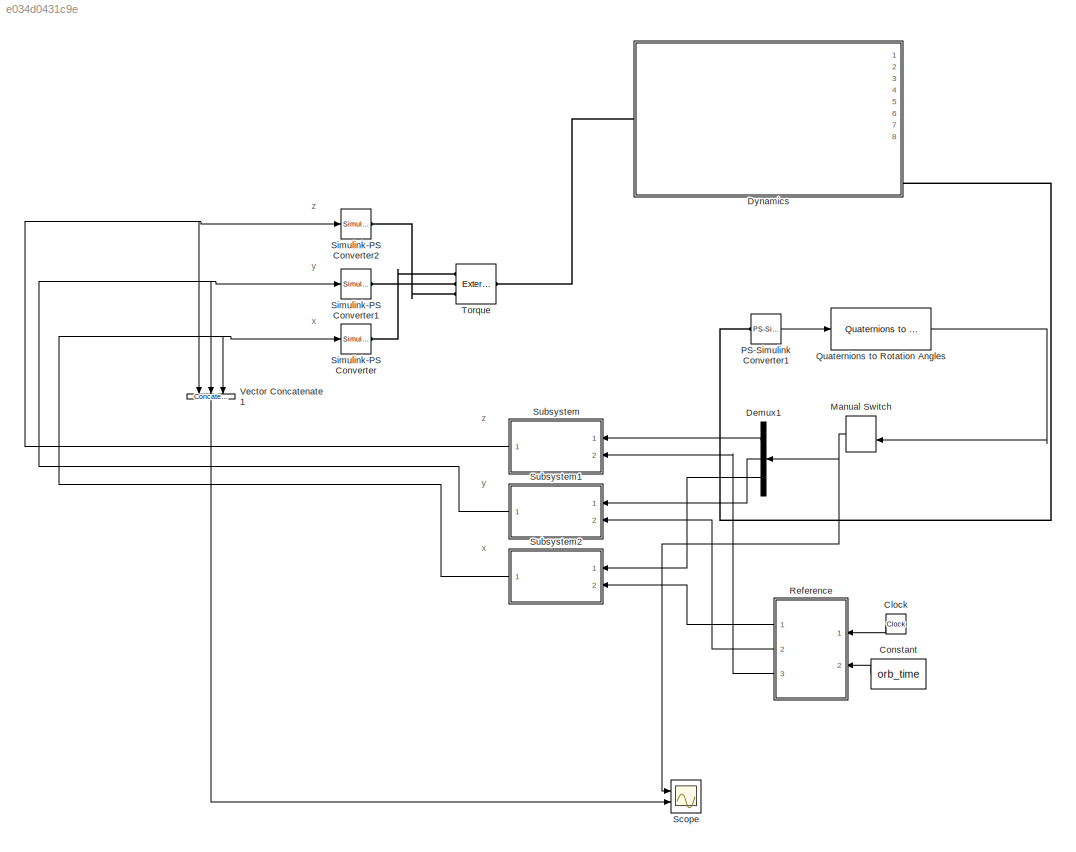
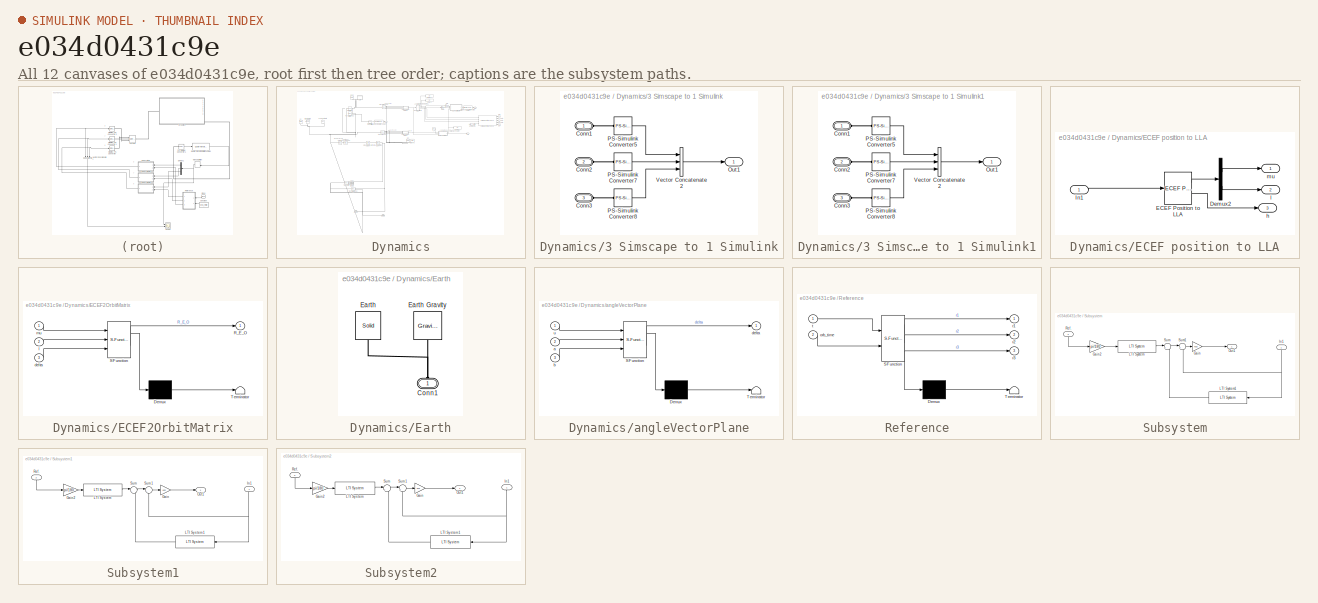
[diagram: thumbnail index - all 12 canvases of the model, root first then tree order]
MODEL slx_e034d0431c9e
KIND model
CONFIG AbsTol = auto
CONFIG EnableMultiTasking = on
CONFIG FixedStep = 24*60*60
CONFIG MaxStep = orb_time*5e-3
CONFIG MinStep = 5e-2
CONFIG RelTol = 1e-6
CONFIG SampleTimeConstraint = Unconstrained
CONFIG Solver = VariableStepAuto
CONFIG SolverName = VariableStepAuto
CONFIG StartTime = 0.0
CONFIG StopTime = 5*orb_time
WORKSPACE source: MATLAB code (in-file)
WORKSPACE code: Orbits_Setup
BLOCK [Clock] Clock
BLOCK [Constant] Constant
  Value = orb_time
BLOCK [Demux] Demux1
  DisplayOption = bar
  Outputs = 3
  Ports = [1, 3]
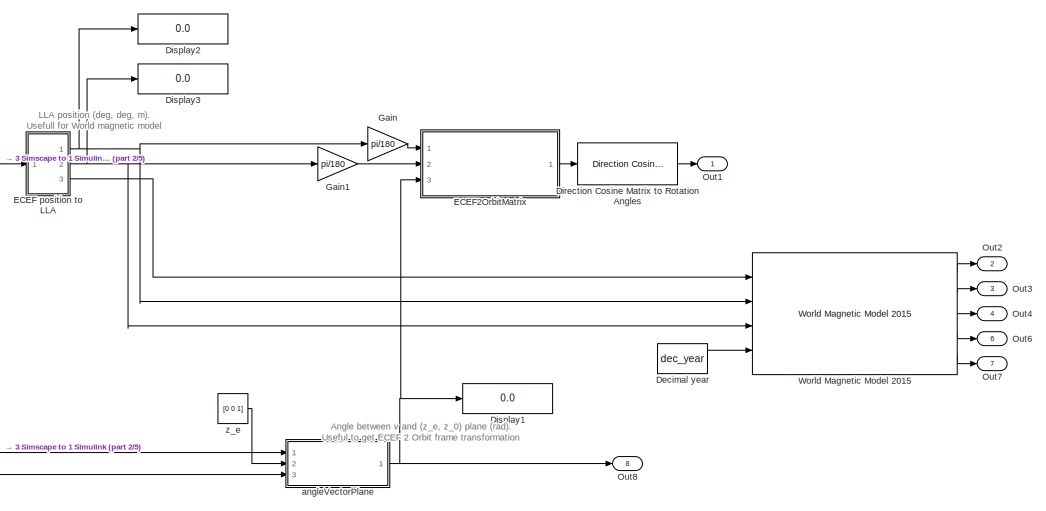
[diagram: Dynamics - part 1/5, top right region]
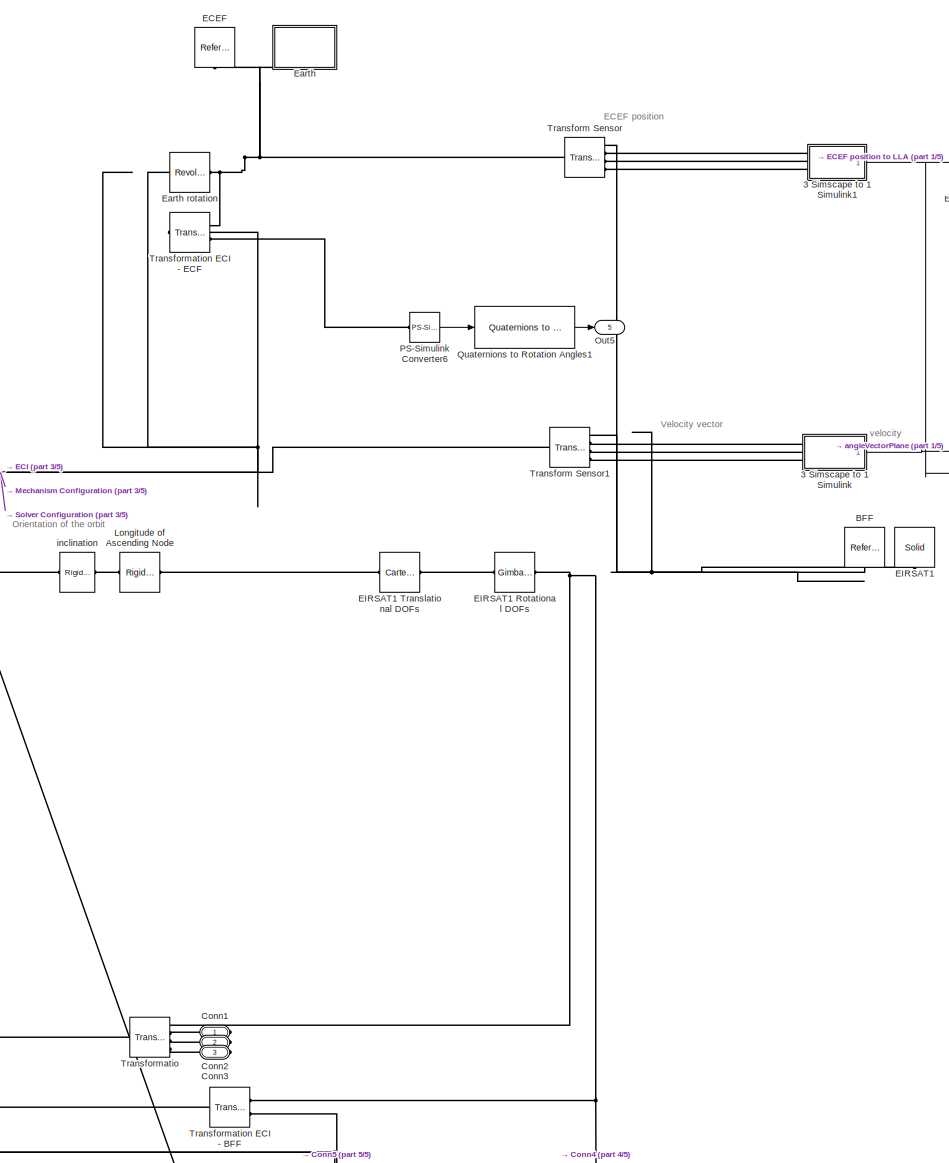
[diagram: Dynamics - part 2/5, central region]
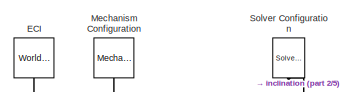
[diagram: Dynamics - part 3/5, top left region]
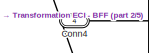
[diagram: Dynamics - part 4/5, bottom left region]
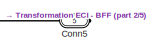
[diagram: Dynamics - part 5/5, bottom center region]
BLOCK [SubSystem] Dynamics
  Ports = [0, 8, 0, 0, 0, 1, 4]
  RequestExecContextInheritance = off
  Variant = off
BLOCK [Reference] Dynamics/ Earth rotation  REF=sm_lib/Joints/Revolute Joint
  Ports = [0, 0, 0, 0, 0, 1, 1]
  SourceBlock = sm_lib/Joints/Revolute Joint
  SourceProductBaseCode = MS
  SourceProductName = Simscape Multibody
  SourceType = Revolute Joint
BLOCK [SubSystem] Dynamics/3 Simscape to 1 Simulink
  Ports = [0, 1, 0, 0, 0, 3]
  RequestExecContextInheritance = off
  Variant = off
BLOCK [PMIOPort] Dynamics/3 Simscape to 1 Simulink/Conn1
  Port = 1
  Side = Left
BLOCK [PMIOPort] Dynamics/3 Simscape to 1 Simulink/Conn2
  Port = 2
  Side = Left
BLOCK [PMIOPort] Dynamics/3 Simscape to 1 Simulink/Conn3
  Port = 3
  Side = Left
BLOCK [Outport] Dynamics/3 Simscape to 1 Simulink/Out1
  IconDisplay = Port number
BLOCK [Reference] Dynamics/3 Simscape to 1 Simulink/PS-Simulink Converter5  REF=nesl_utility/PS-Simulink
Converter
  Ports = [0, 1, 0, 0, 0, 1]
  SourceBlock = nesl_utility/PS-Simulink\nConverter
  SourceProductBaseCode = SS
  SourceProductName = Simscape
  SourceType = PS-Simulink\nConverter
BLOCK [Reference] Dynamics/3 Simscape to 1 Simulink/PS-Simulink Converter7  REF=nesl_utility/PS-Simulink
Converter
  Ports = [0, 1, 0, 0, 0, 1]
  SourceBlock = nesl_utility/PS-Simulink\nConverter
  SourceProductBaseCode = SS
  SourceProductName = Simscape
  SourceType = PS-Simulink\nConverter
BLOCK [Reference] Dynamics/3 Simscape to 1 Simulink/PS-Simulink Converter8  REF=nesl_utility/PS-Simulink
Converter
  Ports = [0, 1, 0, 0, 0, 1]
  SourceBlock = nesl_utility/PS-Simulink\nConverter
  SourceProductBaseCode = SS
  SourceProductName = Simscape
  SourceType = PS-Simulink\nConverter
BLOCK [Concatenate] Dynamics/3 Simscape to 1 Simulink/Vector Concatenate2
  NumInputs = 3
  Ports = [3, 1]
BLOCK [SubSystem] Dynamics/3 Simscape to 1 Simulink1
  Ports = [0, 1, 0, 0, 0, 3]
  RequestExecContextInheritance = off
  Variant = off
BLOCK [PMIOPort] Dynamics/3 Simscape to 1 Simulink1/Conn1
  Port = 1
  Side = Left
BLOCK [PMIOPort] Dynamics/3 Simscape to 1 Simulink1/Conn2
  Port = 2
  Side = Left
BLOCK [PMIOPort] Dynamics/3 Simscape to 1 Simulink1/Conn3
  Port = 3
  Side = Left
BLOCK [Outport] Dynamics/3 Simscape to 1 Simulink1/Out1
  IconDisplay = Port number
BLOCK [Reference] Dynamics/3 Simscape to 1 Simulink1/PS-Simulink Converter5  REF=nesl_utility/PS-Simulink
Converter
  Ports = [0, 1, 0, 0, 0, 1]
  SourceBlock = nesl_utility/PS-Simulink\nConverter
  SourceProductBaseCode = SS
  SourceProductName = Simscape
  SourceType = PS-Simulink\nConverter
BLOCK [Reference] Dynamics/3 Simscape to 1 Simulink1/PS-Simulink Converter7  REF=nesl_utility/PS-Simulink
Converter
  Ports = [0, 1, 0, 0, 0, 1]
  SourceBlock = nesl_utility/PS-Simulink\nConverter
  SourceProductBaseCode = SS
  SourceProductName = Simscape
  SourceType = PS-Simulink\nConverter
BLOCK [Reference] Dynamics/3 Simscape to 1 Simulink1/PS-Simulink Converter8  REF=nesl_utility/PS-Simulink
Converter
  Ports = [0, 1, 0, 0, 0, 1]
  SourceBlock = nesl_utility/PS-Simulink\nConverter
  SourceProductBaseCode = SS
  SourceProductName = Simscape
  SourceType = PS-Simulink\nConverter
BLOCK [Concatenate] Dynamics/3 Simscape to 1 Simulink1/Vector Concatenate2
  NumInputs = 3
  Ports = [3, 1]
BLOCK [Reference] Dynamics/BFF  REF=sm_lib/Frames and
Transforms/Reference
Frame
  Ports = [0, 0, 0, 0, 0, 0, 1]
  SourceBlock = sm_lib/Frames and\nTransforms/Reference\nFrame
  SourceProductBaseCode = MS
  SourceProductName = Simscape Multibody
  SourceType = Reference\nFrame
BLOCK [PMIOPort] Dynamics/Conn1
  Port = 1
  Side = Right
BLOCK [PMIOPort] Dynamics/Conn2
  Port = 2
  Side = Right
BLOCK [PMIOPort] Dynamics/Conn3
  Port = 3
  Side = Right
BLOCK [PMIOPort] Dynamics/Conn4
  Port = 4
  Side = Left
BLOCK [PMIOPort] Dynamics/Conn5
  Port = 5
  Side = Right
BLOCK [Constant] Dynamics/Decimal year
  Commented = on
  Value = dec_year
BLOCK [Reference] Dynamics/Direction Cosine Matrix to Rotation Angles  REF=sharedtransform/Direction Cosine Matrix
to Rotation Angles
  AttributesFormatString = Rotation Order: %<rotationOrder>
  Commented = on
  Ports = [1, 1]
  SourceBlock = sharedtransform/Direction Cosine Matrix\nto Rotation Angles
  SourceType = DCM2Ang
BLOCK [Display] Dynamics/Display1
  Commented = on
  Decimation = 1
  Ports = [1]
BLOCK [Display] Dynamics/Display2
  Commented = on
  Decimation = 1
  Ports = [1]
BLOCK [Display] Dynamics/Display3
  Commented = on
  Decimation = 1
  Ports = [1]
BLOCK [Reference] Dynamics/ECEF   REF=sm_lib/Frames and
Transforms/Reference
Frame
  Ports = [0, 0, 0, 0, 0, 0, 1]
  SourceBlock = sm_lib/Frames and\nTransforms/Reference\nFrame
  SourceProductBaseCode = MS
  SourceProductName = Simscape Multibody
  SourceType = Reference\nFrame
BLOCK [SubSystem] Dynamics/ECEF position to LLA
  Commented = on
  Ports = [1, 3]
  RequestExecContextInheritance = off
  Variant = off
BLOCK [Demux] Dynamics/ECEF position to LLA/Demux2
  DisplayOption = bar
  Outputs = 2
  Ports = [1, 2]
BLOCK [Reference] Dynamics/ECEF position to LLA/ECEF Position to LLA  REF=aerolibtransform2/ECEF Position to LLA
  Ports = [1, 2]
  SourceBlock = aerolibtransform2/ECEF Position to LLA
  SourceProductBaseCode = AE
  SourceProductName = Aerospace Blockset
  SourceType = ECEF to LLA
BLOCK [Inport] Dynamics/ECEF position to LLA/In1
  IconDisplay = Port number
BLOCK [Outport] Dynamics/ECEF position to LLA/h
  IconDisplay = Port number
  Port = 3
BLOCK [Outport] Dynamics/ECEF position to LLA/l
  IconDisplay = Port number
  Port = 2
BLOCK [Outport] Dynamics/ECEF position to LLA/mu
  IconDisplay = Port number
BLOCK [SubSystem] Dynamics/ECEF2OrbitMatrix
  Commented = on
  ErrorFcn = Stateflow.Translate.translate
  PermitHierarchicalResolution = ExplicitOnly
  Ports = [3, 1]
  RequestExecContextInheritance = off
  SFBlockType = MATLAB Function
  TreatAsAtomicUnit = on
  Variant = off
BLOCK [Demux] Dynamics/ECEF2OrbitMatrix/ Demux 
  Outputs = 1
  Ports = [1, 1]
BLOCK [S-Function] Dynamics/ECEF2OrbitMatrix/ SFunction 
  EnableBusSupport = on
  FunctionName = sf_sfun
  PortCounts = [3 2]
  Ports = [3, 2]
  SFcnIsStateOwnerBlock = off
  SFunctionDeploymentMode = off
  Tag = Stateflow S-Function Orbits 4
BLOCK [Terminator] Dynamics/ECEF2OrbitMatrix/ Terminator 
BLOCK [Outport] Dynamics/ECEF2OrbitMatrix/R_E_O
  IconDisplay = Port number
BLOCK [Inport] Dynamics/ECEF2OrbitMatrix/delta
  IconDisplay = Port number
  Port = 3
BLOCK [Inport] Dynamics/ECEF2OrbitMatrix/l
  IconDisplay = Port number
  Port = 2
BLOCK [Inport] Dynamics/ECEF2OrbitMatrix/mu
  IconDisplay = Port number
BLOCK [Reference] Dynamics/ECI  REF=sm_lib/Frames and
Transforms/World Frame
  Ports = [0, 0, 0, 0, 0, 0, 1]
  SourceBlock = sm_lib/Frames and\nTransforms/World Frame
  SourceProductBaseCode = MS
  SourceProductName = Simscape Multibody
  SourceType = World Frame
BLOCK [Reference] Dynamics/EIRSAT1  REF=sm_lib/Body Elements/Solid
  Ports = [0, 0, 0, 0, 0, 0, 1]
  SourceBlock = sm_lib/Body Elements/Solid
  SourceProductBaseCode = MS
  SourceProductName = Simscape Multibody
  SourceType = Solid
BLOCK [Reference] Dynamics/EIRSAT1 Rotational DOFs  REF=sm_lib/Joints/Gimbal Joint
  Ports = [0, 0, 0, 0, 0, 1, 1]
  SourceBlock = sm_lib/Joints/Gimbal Joint
  SourceProductBaseCode = MS
  SourceProductName = Simscape Multibody
  SourceType = Gimbal Joint
BLOCK [Reference] Dynamics/EIRSAT1 Translational DOFs  REF=sm_lib/Joints/Cartesian
Joint
  Ports = [0, 0, 0, 0, 0, 1, 1]
  SourceBlock = sm_lib/Joints/Cartesian\nJoint
  SourceProductBaseCode = MS
  SourceProductName = Simscape Multibody
  SourceType = Cartesian\nJoint
BLOCK [SubSystem] Dynamics/Earth
  Ports = [0, 0, 0, 0, 0, 1]
  RequestExecContextInheritance = off
  Variant = off
BLOCK [PMIOPort] Dynamics/Earth/Conn1
  Port = 1
  Side = Left
BLOCK [Reference] Dynamics/Earth/Earth  REF=sm_lib/Body Elements/Solid
  Ports = [0, 0, 0, 0, 0, 0, 1]
  SourceBlock = sm_lib/Body Elements/Solid
  SourceProductBaseCode = MS
  SourceProductName = Simscape Multibody
  SourceType = Solid
BLOCK [Reference] Dynamics/Earth/Earth Gravity  REF=sm_lib/Forces and
Torques/Gravitational
Field
  Ports = [0, 0, 0, 0, 0, 1]
  SourceBlock = sm_lib/Forces and\nTorques/Gravitational\nField
  SourceProductBaseCode = MS
  SourceProductName = Simscape Multibody
  SourceType = Gravitational\nField
BLOCK [Gain] Dynamics/Gain
  Commented = on
  Gain = pi/180
  OutDataTypeStr = Inherit: Inherit via internal rule
  ParamDataTypeStr = Inherit: Inherit via internal rule
  SaturateOnIntegerOverflow = off
BLOCK [Gain] Dynamics/Gain1
  Commented = on
  Gain = pi/180
  OutDataTypeStr = Inherit: Inherit via internal rule
  ParamDataTypeStr = Inherit: Inherit via internal rule
  SaturateOnIntegerOverflow = off
BLOCK [Reference] Dynamics/Longitude of Ascending Node  REF=sm_lib/Frames and
Transforms/Rigid
Transform
  Ports = [0, 0, 0, 0, 0, 1, 1]
  SourceBlock = sm_lib/Frames and\nTransforms/Rigid\nTransform
  SourceProductBaseCode = MS
  SourceProductName = Simscape Multibody
  SourceType = Rigid\nTransform
BLOCK [Reference] Dynamics/Mechanism Configuration  REF=sm_lib/Utilities/Mechanism
Configuration
  Ports = [0, 0, 0, 0, 0, 0, 1]
  SourceBlock = sm_lib/Utilities/Mechanism\nConfiguration
  SourceProductBaseCode = MS
  SourceProductName = Simscape Multibody
  SourceType = Mechanism\nConfiguration
BLOCK [Outport] Dynamics/Out1
  IconDisplay = Port number
BLOCK [Outport] Dynamics/Out2
  IconDisplay = Port number
  Port = 2
BLOCK [Outport] Dynamics/Out3
  IconDisplay = Port number
  Port = 3
BLOCK [Outport] Dynamics/Out4
  IconDisplay = Port number
  Port = 4
BLOCK [Outport] Dynamics/Out5
  IconDisplay = Port number
  Port = 5
BLOCK [Outport] Dynamics/Out6
  IconDisplay = Port number
  Port = 6
BLOCK [Outport] Dynamics/Out7
  IconDisplay = Port number
  Port = 7
BLOCK [Outport] Dynamics/Out8
  IconDisplay = Port number
  Port = 8
BLOCK [Reference] Dynamics/PS-Simulink Converter6  REF=nesl_utility/PS-Simulink
Converter
  Ports = [0, 1, 0, 0, 0, 1]
  SourceBlock = nesl_utility/PS-Simulink\nConverter
  SourceProductBaseCode = SS
  SourceProductName = Simscape
  SourceType = PS-Simulink\nConverter
BLOCK [Reference] Dynamics/Quaternions to Rotation Angles1  REF=sharedtransform/Quaternions to Rotation Angles
  AttributesFormatString = Rotation Order: %<rotationOrder>
  Ports = [1, 1]
  SourceBlock = sharedtransform/Quaternions to Rotation Angles
  SourceType = Quat2Ang
BLOCK [Reference] Dynamics/Solver Configuration  REF=nesl_utility/Solver
Configuration
  Ports = [0, 0, 0, 0, 0, 0, 1]
  SourceBlock = nesl_utility/Solver\nConfiguration
  SourceProductBaseCode = SS
  SourceProductName = Simscape
  SourceType = Solver\nConfiguration
BLOCK [Reference] Dynamics/Transform Sensor  REF=sm_lib/Frames and
Transforms/Transform
Sensor
  Ports = [0, 0, 0, 0, 0, 1, 4]
  SourceBlock = sm_lib/Frames and\nTransforms/Transform\nSensor
  SourceProductBaseCode = MS
  SourceProductName = Simscape Multibody
  SourceType = Transform\nSensor
BLOCK [Reference] Dynamics/Transform Sensor1  REF=sm_lib/Frames and
Transforms/Transform
Sensor
  Ports = [0, 0, 0, 0, 0, 1, 4]
  SourceBlock = sm_lib/Frames and\nTransforms/Transform\nSensor
  SourceProductBaseCode = MS
  SourceProductName = Simscape Multibody
  SourceType = Transform\nSensor
BLOCK [Reference] Dynamics/Transformatio  REF=sm_lib/Frames and
Transforms/Transform
Sensor
  Ports = [0, 0, 0, 0, 0, 1, 4]
  SourceBlock = sm_lib/Frames and\nTransforms/Transform\nSensor
  SourceProductBaseCode = MS
  SourceProductName = Simscape Multibody
  SourceType = Transform\nSensor
BLOCK [Reference] Dynamics/Transformation ECI - BFF  REF=sm_lib/Frames and
Transforms/Transform
Sensor
  Ports = [0, 0, 0, 0, 0, 1, 2]
  SourceBlock = sm_lib/Frames and\nTransforms/Transform\nSensor
  SourceProductBaseCode = MS
  SourceProductName = Simscape Multibody
  SourceType = Transform\nSensor
BLOCK [Reference] Dynamics/Transformation ECI - ECF  REF=sm_lib/Frames and
Transforms/Transform
Sensor
  Ports = [0, 0, 0, 0, 0, 1, 2]
  SourceBlock = sm_lib/Frames and\nTransforms/Transform\nSensor
  SourceProductBaseCode = MS
  SourceProductName = Simscape Multibody
  SourceType = Transform\nSensor
BLOCK [Reference] Dynamics/World Magnetic Model 2015  REF=aerolibgravity2/World Magnetic Model 2015
  Commented = on
  Ports = [4, 5]
  SourceBlock = aerolibgravity2/World Magnetic Model 2015
  SourceProductBaseCode = AE
  SourceProductName = Aerospace Blockset
  SourceType = WorldMagneticModel2015
BLOCK [SubSystem] Dynamics/angleVectorPlane
  Commented = on
  ErrorFcn = Stateflow.Translate.translate
  PermitHierarchicalResolution = ExplicitOnly
  Ports = [3, 1]
  RequestExecContextInheritance = off
  SFBlockType = MATLAB Function
  TreatAsAtomicUnit = on
  Variant = off
BLOCK [Demux] Dynamics/angleVectorPlane/ Demux 
  Outputs = 1
  Ports = [1, 1]
BLOCK [S-Function] Dynamics/angleVectorPlane/ SFunction 
  EnableBusSupport = on
  FunctionName = sf_sfun
  PortCounts = [3 2]
  Ports = [3, 2]
  SFcnIsStateOwnerBlock = off
  SFunctionDeploymentMode = off
  Tag = Stateflow S-Function Orbits 3
BLOCK [Terminator] Dynamics/angleVectorPlane/ Terminator 
BLOCK [Inport] Dynamics/angleVectorPlane/a
  IconDisplay = Port number
  Port = 2
BLOCK [Inport] Dynamics/angleVectorPlane/b
  IconDisplay = Port number
  Port = 3
BLOCK [Outport] Dynamics/angleVectorPlane/delta
  IconDisplay = Port number
BLOCK [Inport] Dynamics/angleVectorPlane/u
  IconDisplay = Port number
BLOCK [Reference] Dynamics/inclination  REF=sm_lib/Frames and
Transforms/Rigid
Transform
  Ports = [0, 0, 0, 0, 0, 1, 1]
  SourceBlock = sm_lib/Frames and\nTransforms/Rigid\nTransform
  SourceProductBaseCode = MS
  SourceProductName = Simscape Multibody
  SourceType = Rigid\nTransform
BLOCK [Constant] Dynamics/z_e
  Commented = on
  Value = [0 0 1]
BLOCK [ManualSwitch] Manual Switch
  CurrentSetting = 0
BLOCK [Reference] PS-Simulink Converter1  REF=nesl_utility/PS-Simulink
Converter
  Ports = [0, 1, 0, 0, 0, 1]
  SourceBlock = nesl_utility/PS-Simulink\nConverter
  SourceProductBaseCode = SS
  SourceProductName = Simscape
  SourceType = PS-Simulink\nConverter
BLOCK [Reference] Quaternions to Rotation Angles  REF=sharedtransform/Quaternions to Rotation Angles
  AttributesFormatString = Rotation Order: %<rotationOrder>
  Ports = [1, 1]
  SourceBlock = sharedtransform/Quaternions to Rotation Angles
  SourceType = Quat2Ang
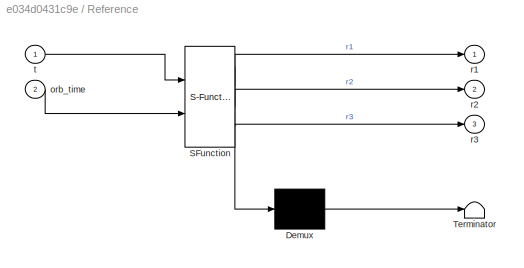
BLOCK [SubSystem] Reference
  ErrorFcn = Stateflow.Translate.translate
  PermitHierarchicalResolution = ExplicitOnly
  Ports = [2, 3]
  RequestExecContextInheritance = off
  SFBlockType = MATLAB Function
  TreatAsAtomicUnit = on
  Variant = off
BLOCK [Demux] Reference/ Demux 
  Outputs = 1
  Ports = [1, 1]
BLOCK [S-Function] Reference/ SFunction 
  EnableBusSupport = on
  FunctionName = sf_sfun
  PortCounts = [2 4]
  Ports = [2, 4]
  SFcnIsStateOwnerBlock = off
  SFunctionDeploymentMode = off
  Tag = Stateflow S-Function Orbits 2
BLOCK [Terminator] Reference/ Terminator 
BLOCK [Inport] Reference/orb_time
  IconDisplay = Port number
  Port = 2
BLOCK [Outport] Reference/r1
  IconDisplay = Port number
BLOCK [Outport] Reference/r2
  IconDisplay = Port number
  Port = 2
BLOCK [Outport] Reference/r3
  IconDisplay = Port number
  Port = 3
BLOCK [Inport] Reference/t
  IconDisplay = Port number
BLOCK [Scope] Scope
  NumInputPorts = 2
  Ports = [2]
  ScopeSpecificationString = Simulink.scopes.TimeScopeBlockCfg('CurrentConfiguration', extmgr.ConfigurationSet(extmgr.Configuration('Core','General UI',true),extmgr.Configuration('Core','Source UI',true),extmgr.Configuration('Sources','WiredSimulink',true),extmgr.Configuration('Visuals','Time Domain',true,'TimeAxisLabels','All','SerializedDisplays',{struct('MinYLimReal','-0.39221','MaxYLimReal','0.94639','YLabelReal','Euler A...<+2100ch>
BLOCK [Reference] Simulink-PS Converter  REF=nesl_utility/Simulink-PS
Converter
  Ports = [1, 0, 0, 0, 0, 0, 1]
  SourceBlock = nesl_utility/Simulink-PS\nConverter
  SourceProductBaseCode = SS
  SourceProductName = Simscape
  SourceType = Simulink-PS\nConverter
BLOCK [Reference] Simulink-PS Converter1  REF=nesl_utility/Simulink-PS
Converter
  Ports = [1, 0, 0, 0, 0, 0, 1]
  SourceBlock = nesl_utility/Simulink-PS\nConverter
  SourceProductBaseCode = SS
  SourceProductName = Simscape
  SourceType = Simulink-PS\nConverter
BLOCK [Reference] Simulink-PS Converter2  REF=nesl_utility/Simulink-PS
Converter
  Ports = [1, 0, 0, 0, 0, 0, 1]
  SourceBlock = nesl_utility/Simulink-PS\nConverter
  SourceProductBaseCode = SS
  SourceProductName = Simscape
  SourceType = Simulink-PS\nConverter
BLOCK [SubSystem] Subsystem
  Ports = [2, 1]
  RequestExecContextInheritance = off
  Variant = off
BLOCK [Gain] Subsystem/Gain
  Gain = k03
  OutDataTypeStr = Inherit: Inherit via internal rule
  ParamDataTypeStr = Inherit: Inherit via internal rule
  SaturateOnIntegerOverflow = off
BLOCK [Gain] Subsystem/Gain2
  Gain = pi/180
  OutDataTypeStr = Inherit: Inherit via internal rule
  ParamDataTypeStr = Inherit: Inherit via internal rule
  SaturateOnIntegerOverflow = off
BLOCK [Inport] Subsystem/In1
  IconDisplay = Port number
BLOCK [Reference] Subsystem/LTI System  REF=cstblocks/LTI System
  Ports = [1, 1]
  SourceBlock = cstblocks/LTI System
  SourceProductBaseCode = CT
  SourceProductName = Control System Toolbox
  SourceType = LTI Block
BLOCK [Reference] Subsystem/LTI System1  REF=cstblocks/LTI System
  Ports = [1, 1]
  SourceBlock = cstblocks/LTI System
  SourceProductBaseCode = CT
  SourceProductName = Control System Toolbox
  SourceType = LTI Block
BLOCK [Outport] Subsystem/Out1
  IconDisplay = Port number
BLOCK [Inport] Subsystem/Ref.
  IconDisplay = Port number
  Port = 2
BLOCK [Sum] Subsystem/Sum
  IconShape = round
  InputSameDT = off
  Inputs = |++
  OutDataTypeStr = Inherit: Inherit via internal rule
  Ports = [2, 1]
  SaturateOnIntegerOverflow = off
BLOCK [Sum] Subsystem/Sum1
  IconShape = round
  InputSameDT = off
  Inputs = |+-
  OutDataTypeStr = Inherit: Inherit via internal rule
  Ports = [2, 1]
  SaturateOnIntegerOverflow = off
BLOCK [SubSystem] Subsystem1
  Ports = [2, 1]
  RequestExecContextInheritance = off
  Variant = off
BLOCK [Gain] Subsystem1/Gain
  Gain = k02
  OutDataTypeStr = Inherit: Inherit via internal rule
  ParamDataTypeStr = Inherit: Inherit via internal rule
  SaturateOnIntegerOverflow = off
BLOCK [Gain] Subsystem1/Gain2
  Gain = pi/180
  OutDataTypeStr = Inherit: Inherit via internal rule
  ParamDataTypeStr = Inherit: Inherit via internal rule
  SaturateOnIntegerOverflow = off
BLOCK [Inport] Subsystem1/In1
  IconDisplay = Port number
BLOCK [Reference] Subsystem1/LTI System  REF=cstblocks/LTI System
  Ports = [1, 1]
  SourceBlock = cstblocks/LTI System
  SourceProductBaseCode = CT
  SourceProductName = Control System Toolbox
  SourceType = LTI Block
BLOCK [Reference] Subsystem1/LTI System1  REF=cstblocks/LTI System
  Ports = [1, 1]
  SourceBlock = cstblocks/LTI System
  SourceProductBaseCode = CT
  SourceProductName = Control System Toolbox
  SourceType = LTI Block
BLOCK [Outport] Subsystem1/Out1
  IconDisplay = Port number
BLOCK [Inport] Subsystem1/Ref.
  IconDisplay = Port number
  Port = 2
BLOCK [Sum] Subsystem1/Sum
  IconShape = round
  InputSameDT = off
  Inputs = |++
  OutDataTypeStr = Inherit: Inherit via internal rule
  Ports = [2, 1]
  SaturateOnIntegerOverflow = off
BLOCK [Sum] Subsystem1/Sum1
  IconShape = round
  InputSameDT = off
  Inputs = |+-
  OutDataTypeStr = Inherit: Inherit via internal rule
  Ports = [2, 1]
  SaturateOnIntegerOverflow = off
BLOCK [SubSystem] Subsystem2
  Ports = [2, 1]
  RequestExecContextInheritance = off
  Variant = off
BLOCK [Gain] Subsystem2/Gain
  Gain = k01
  OutDataTypeStr = Inherit: Inherit via internal rule
  ParamDataTypeStr = Inherit: Inherit via internal rule
  SaturateOnIntegerOverflow = off
BLOCK [Gain] Subsystem2/Gain2
  Gain = pi/180
  OutDataTypeStr = Inherit: Inherit via internal rule
  ParamDataTypeStr = Inherit: Inherit via internal rule
  SaturateOnIntegerOverflow = off
BLOCK [Inport] Subsystem2/In1
  IconDisplay = Port number
BLOCK [Reference] Subsystem2/LTI System  REF=cstblocks/LTI System
  Ports = [1, 1]
  SourceBlock = cstblocks/LTI System
  SourceProductBaseCode = CT
  SourceProductName = Control System Toolbox
  SourceType = LTI Block
BLOCK [Reference] Subsystem2/LTI System1  REF=cstblocks/LTI System
  Ports = [1, 1]
  SourceBlock = cstblocks/LTI System
  SourceProductBaseCode = CT
  SourceProductName = Control System Toolbox
  SourceType = LTI Block
BLOCK [Outport] Subsystem2/Out1
  IconDisplay = Port number
BLOCK [Inport] Subsystem2/Ref.
  IconDisplay = Port number
  Port = 2
BLOCK [Sum] Subsystem2/Sum
  IconShape = round
  InputSameDT = off
  Inputs = |++
  OutDataTypeStr = Inherit: Inherit via internal rule
  Ports = [2, 1]
  SaturateOnIntegerOverflow = off
BLOCK [Sum] Subsystem2/Sum1
  IconShape = round
  InputSameDT = off
  Inputs = |+-
  OutDataTypeStr = Inherit: Inherit via internal rule
  Ports = [2, 1]
  SaturateOnIntegerOverflow = off
BLOCK [Reference] Torque  REF=sm_lib/Forces and
Torques/External Force
and Torque
  Ports = [0, 0, 0, 0, 0, 3, 1]
  SourceBlock = sm_lib/Forces and\nTorques/External Force\nand Torque
  SourceProductBaseCode = MS
  SourceProductName = Simscape Multibody
  SourceType = External Force\nand Torque
BLOCK [Concatenate] Vector Concatenate1
  NumInputs = 3
  Ports = [3, 1]
ANNOTATION (root): x
ANNOTATION (root): y
ANNOTATION (root): z
ANNOTATION Dynamics: Angle between v and (z_e, z_0) plane (rad). Useful to get ECEF 2 Orbit frame transformation
ANNOTATION Dynamics: ECEF position
ANNOTATION Dynamics: LLA position (deg, deg, m). Usefull for World magnetic model
ANNOTATION Dynamics: Orientation of the orbit
ANNOTATION Dynamics: Velocity vector
ANNOTATION Dynamics: velocity
LINE Clock:1 -> Reference:1
LINE Constant:1 -> Reference:2
LINE Demux1:1 -> Subsystem:1
LINE Demux1:2 -> Subsystem1:1
LINE Demux1:3 -> Subsystem2:1
LINE Dynamics/3 Simscape to 1 Simulink/PS-Simulink Converter5:1 -> Dynamics/3 Simscape to 1 Simulink/Vector Concatenate2:1
LINE Dynamics/3 Simscape to 1 Simulink/PS-Simulink Converter7:1 -> Dynamics/3 Simscape to 1 Simulink/Vector Concatenate2:2
LINE Dynamics/3 Simscape to 1 Simulink/PS-Simulink Converter8:1 -> Dynamics/3 Simscape to 1 Simulink/Vector Concatenate2:3
LINE Dynamics/3 Simscape to 1 Simulink/Vector Concatenate2:1 -> Dynamics/3 Simscape to 1 Simulink/Out1:1
LINE Dynamics/3 Simscape to 1 Simulink1/PS-Simulink Converter5:1 -> Dynamics/3 Simscape to 1 Simulink1/Vector Concatenate2:1
LINE Dynamics/3 Simscape to 1 Simulink1/PS-Simulink Converter7:1 -> Dynamics/3 Simscape to 1 Simulink1/Vector Concatenate2:2
LINE Dynamics/3 Simscape to 1 Simulink1/PS-Simulink Converter8:1 -> Dynamics/3 Simscape to 1 Simulink1/Vector Concatenate2:3
LINE Dynamics/3 Simscape to 1 Simulink1/Vector Concatenate2:1 -> Dynamics/3 Simscape to 1 Simulink1/Out1:1
NET Dynamics/3 Simscape to 1 Simulink1:1 -> Dynamics/ECEF position to LLA:1, Dynamics/angleVectorPlane:3
LINE Dynamics/3 Simscape to 1 Simulink:1 -> Dynamics/angleVectorPlane:1
LINE Dynamics/Decimal year:1 -> Dynamics/World Magnetic Model 2015:4
LINE Dynamics/Direction Cosine Matrix to Rotation Angles:1 -> Dynamics/Out1:1
LINE Dynamics/ECEF position to LLA/Demux2:1 -> Dynamics/ECEF position to LLA/mu:1
LINE Dynamics/ECEF position to LLA/Demux2:2 -> Dynamics/ECEF position to LLA/l:1
LINE Dynamics/ECEF position to LLA/ECEF Position to LLA:1 -> Dynamics/ECEF position to LLA/Demux2:1
LINE Dynamics/ECEF position to LLA/ECEF Position to LLA:2 -> Dynamics/ECEF position to LLA/h:1
LINE Dynamics/ECEF position to LLA/In1:1 -> Dynamics/ECEF position to LLA/ECEF Position to LLA:1
NET Dynamics/ECEF position to LLA:1 -> Dynamics/Display2:1, Dynamics/Gain:1, Dynamics/World Magnetic Model 2015:2
NET Dynamics/ECEF position to LLA:2 -> Dynamics/Display3:1, Dynamics/Gain1:1, Dynamics/World Magnetic Model 2015:3
LINE Dynamics/ECEF position to LLA:3 -> Dynamics/World Magnetic Model 2015:1
LINE Dynamics/ECEF2OrbitMatrix:1 -> Dynamics/Direction Cosine Matrix to Rotation Angles:1
LINE Dynamics/Gain1:1 -> Dynamics/ECEF2OrbitMatrix:2
LINE Dynamics/Gain:1 -> Dynamics/ECEF2OrbitMatrix:1
LINE Dynamics/PS-Simulink Converter6:1 -> Dynamics/Quaternions to Rotation Angles1:1
LINE Dynamics/Quaternions to Rotation Angles1:1 -> Dynamics/Out5:1
LINE Dynamics/World Magnetic Model 2015:1 -> Dynamics/Out2:1
LINE Dynamics/World Magnetic Model 2015:2 -> Dynamics/Out3:1
LINE Dynamics/World Magnetic Model 2015:3 -> Dynamics/Out4:1
LINE Dynamics/World Magnetic Model 2015:4 -> Dynamics/Out6:1
LINE Dynamics/World Magnetic Model 2015:5 -> Dynamics/Out7:1
NET Dynamics/angleVectorPlane:1 -> Dynamics/Display1:1, Dynamics/ECEF2OrbitMatrix:3, Dynamics/Out8:1
LINE Dynamics/z_e:1 -> Dynamics/angleVectorPlane:2
NET Manual Switch:1 -> Demux1:1, Scope:1
LINE PS-Simulink Converter1:1 -> Quaternions to Rotation Angles:1
LINE Quaternions to Rotation Angles:1 -> Manual Switch:2
LINE Reference:1 -> Subsystem2:2
LINE Reference:2 -> Subsystem1:2
LINE Reference:3 -> Subsystem:2
LINE Subsystem/Gain2:1 -> Subsystem/LTI System:1
LINE Subsystem/Gain:1 -> Subsystem/Out1:1
NET Subsystem/In1:1 -> Subsystem/LTI System1:1, Subsystem/Sum1:2
LINE Subsystem/LTI System1:1 -> Subsystem/Sum:2
LINE Subsystem/LTI System:1 -> Subsystem/Sum:1
LINE Subsystem/Ref.:1 -> Subsystem/Gain2:1
LINE Subsystem/Sum1:1 -> Subsystem/Gain:1
LINE Subsystem/Sum:1 -> Subsystem/Sum1:1
LINE Subsystem1/Gain2:1 -> Subsystem1/LTI System:1
LINE Subsystem1/Gain:1 -> Subsystem1/Out1:1
NET Subsystem1/In1:1 -> Subsystem1/LTI System1:1, Subsystem1/Sum1:2
LINE Subsystem1/LTI System1:1 -> Subsystem1/Sum:2
LINE Subsystem1/LTI System:1 -> Subsystem1/Sum:1
LINE Subsystem1/Ref.:1 -> Subsystem1/Gain2:1
LINE Subsystem1/Sum1:1 -> Subsystem1/Gain:1
LINE Subsystem1/Sum:1 -> Subsystem1/Sum1:1
NET Subsystem1:1 -> Simulink-PS Converter1:1, Vector Concatenate1:2
LINE Subsystem2/Gain2:1 -> Subsystem2/LTI System:1
LINE Subsystem2/Gain:1 -> Subsystem2/Out1:1
NET Subsystem2/In1:1 -> Subsystem2/LTI System1:1, Subsystem2/Sum1:2
LINE Subsystem2/LTI System1:1 -> Subsystem2/Sum:2
LINE Subsystem2/LTI System:1 -> Subsystem2/Sum:1
LINE Subsystem2/Ref.:1 -> Subsystem2/Gain2:1
LINE Subsystem2/Sum1:1 -> Subsystem2/Gain:1
LINE Subsystem2/Sum:1 -> Subsystem2/Sum1:1
NET Subsystem2:1 -> Simulink-PS Converter:1, Vector Concatenate1:3
NET Subsystem:1 -> Simulink-PS Converter2:1, Vector Concatenate1:1
LINE Vector Concatenate1:1 -> Scope:2
PNET net1: Dynamics/ Earth rotation:LConn1 -- Dynamics/ECI:RConn1 -- Dynamics/Mechanism Configuration:RConn1 -- Dynamics/Solver Configuration:RConn1 -- Dynamics/Transform Sensor1:LConn1 -- Dynamics/Transformatio:LConn1 -- Dynamics/Transformation ECI - BFF:LConn1 -- Dynamics/Transformation ECI - ECF:LConn1 -- Dynamics/inclination:LConn1
PNET net2: Dynamics/ Earth rotation:RConn1 -- Dynamics/ECEF :RConn1 -- Dynamics/Earth:LConn1 -- Dynamics/Transform Sensor:LConn1 -- Dynamics/Transformation ECI - ECF:RConn1
PLINE Dynamics/3 Simscape to 1 Simulink/Conn1:RConn1 -- Dynamics/3 Simscape to 1 Simulink/PS-Simulink Converter5:LConn1
PLINE Dynamics/3 Simscape to 1 Simulink/Conn2:RConn1 -- Dynamics/3 Simscape to 1 Simulink/PS-Simulink Converter7:LConn1
PLINE Dynamics/3 Simscape to 1 Simulink/Conn3:RConn1 -- Dynamics/3 Simscape to 1 Simulink/PS-Simulink Converter8:LConn1
PLINE Dynamics/3 Simscape to 1 Simulink1/Conn1:RConn1 -- Dynamics/3 Simscape to 1 Simulink1/PS-Simulink Converter5:LConn1
PLINE Dynamics/3 Simscape to 1 Simulink1/Conn2:RConn1 -- Dynamics/3 Simscape to 1 Simulink1/PS-Simulink Converter7:LConn1
PLINE Dynamics/3 Simscape to 1 Simulink1/Conn3:RConn1 -- Dynamics/3 Simscape to 1 Simulink1/PS-Simulink Converter8:LConn1
PLINE Dynamics/3 Simscape to 1 Simulink1:LConn1 -- Dynamics/Transform Sensor:RConn2
PLINE Dynamics/3 Simscape to 1 Simulink1:LConn2 -- Dynamics/Transform Sensor:RConn3
PLINE Dynamics/3 Simscape to 1 Simulink1:LConn3 -- Dynamics/Transform Sensor:RConn4
PLINE Dynamics/3 Simscape to 1 Simulink:LConn1 -- Dynamics/Transform Sensor1:RConn2
PLINE Dynamics/3 Simscape to 1 Simulink:LConn2 -- Dynamics/Transform Sensor1:RConn3
PLINE Dynamics/3 Simscape to 1 Simulink:LConn3 -- Dynamics/Transform Sensor1:RConn4
PNET net3: Dynamics/BFF:RConn1 -- Dynamics/Conn4:RConn1 -- Dynamics/EIRSAT1 Rotational DOFs:RConn1 -- Dynamics/EIRSAT1:RConn1 -- Dynamics/Transform Sensor1:RConn1 -- Dynamics/Transform Sensor:RConn1 -- Dynamics/Transformatio:RConn1 -- Dynamics/Transformation ECI - BFF:RConn1
PLINE Dynamics/Conn1:RConn1 -- Dynamics/Transformatio:RConn2
PLINE Dynamics/Conn2:RConn1 -- Dynamics/Transformatio:RConn3
PLINE Dynamics/Conn3:RConn1 -- Dynamics/Transformatio:RConn4
PLINE Dynamics/Conn5:RConn1 -- Dynamics/Transformation ECI - BFF:RConn2
PLINE Dynamics/EIRSAT1 Rotational DOFs:LConn1 -- Dynamics/EIRSAT1 Translational DOFs:RConn1
PLINE Dynamics/EIRSAT1 Translational DOFs:LConn1 -- Dynamics/Longitude of Ascending Node:RConn1
PNET net4: Dynamics/Earth/Conn1:RConn1 -- Dynamics/Earth/Earth Gravity:LConn1 -- Dynamics/Earth/Earth:RConn1
PLINE Dynamics/Longitude of Ascending Node:LConn1 -- Dynamics/inclination:RConn1
PLINE Dynamics/PS-Simulink Converter6:LConn1 -- Dynamics/Transformation ECI - ECF:RConn2
PLINE Dynamics:LConn1 -- Torque:RConn1
PLINE Dynamics:RConn4 -- PS-Simulink Converter1:LConn1
PLINE Simulink-PS Converter1:RConn1 -- Torque:LConn2
PLINE Simulink-PS Converter2:RConn1 -- Torque:LConn3
PLINE Simulink-PS Converter:RConn1 -- Torque:LConn1
note: NET lines group one-source signal fan-out (src -> all destinations, sorted); 1:1 wires keep LINE; PNET lines group multi-terminal physical nets as a canonical sorted terminal list (undirected conserving connections); 2-terminal nets keep the pairwise PLINE form
CHART Reference states=1 transitions=1
  STATE_LABEL 'eML_blk_kernel()'
  STATE_LABEL 'SCRIPT:\nfunction [r1,r2,r3] = fcn(t, orb_time)\n\n%Define references r1 r2 r3 as a function of time. \n\n%Steps of amplitude A1 A2 A2 (deg) , at times T1 T2 T3 (sec)\n\nT1 = 1*orb_time;\nT2 = 2*orb_time;\nT3 = 3*orb_time; \nA1 = 0.5 * (180/pi);\nA2 = 0.5 * (180/pi);\nA3 = 0.5 * (180/pi);\n\nr1 = 0; r2 = 0; r3 = 0;\n\nif t > T1; r1 = A1; end\nif t > T2; r2 = A2; end\nif t > T3; r3 = A3; end\n\nreturn;'
CHART Dynamics/angleVectorPlane states=1 transitions=1
  STATE_LABEL 'eML_blk_kernel()'
  STATE_LABEL 'SCRIPT:\nfunction delta = angleVectorPlane(u,a,b)\n%Tells the angle between a vector u = [u1, u2, u3], and a plane devined by\n%the (non-parallel) vectors a and b\n\n%Compute the normal vector N\nN = cross(a,b);\n\ndelta = asin(abs(dot(N,u))/(norm(N)*norm(u))) ;\n\nreturn;'
CHART Dynamics/ECEF2OrbitMatrix states=1 transitions=1
  STATE_LABEL 'eML_blk_kernel()'
  STATE_LABEL 'SCRIPT:\nfunction R_E_O = ECEF2OrbitMatrix(mu,l,delta)\n%Taking altitude mu, longitude l, and delta, angle between the\n%velocity of le satellite and the (z_e, z_o) plane, gives the rotation\n%matrix from ECEF to Orbit frame\n\n%__________________________________________________________________________\n\ncl = cos(l);\nsl = sin(l);\ncmu = cos(mu);\nsmu = sin(mu);\ncd = cos(delta);\nsd = sin(delta);\n\n\nR_E_O = [...<+162ch>'
